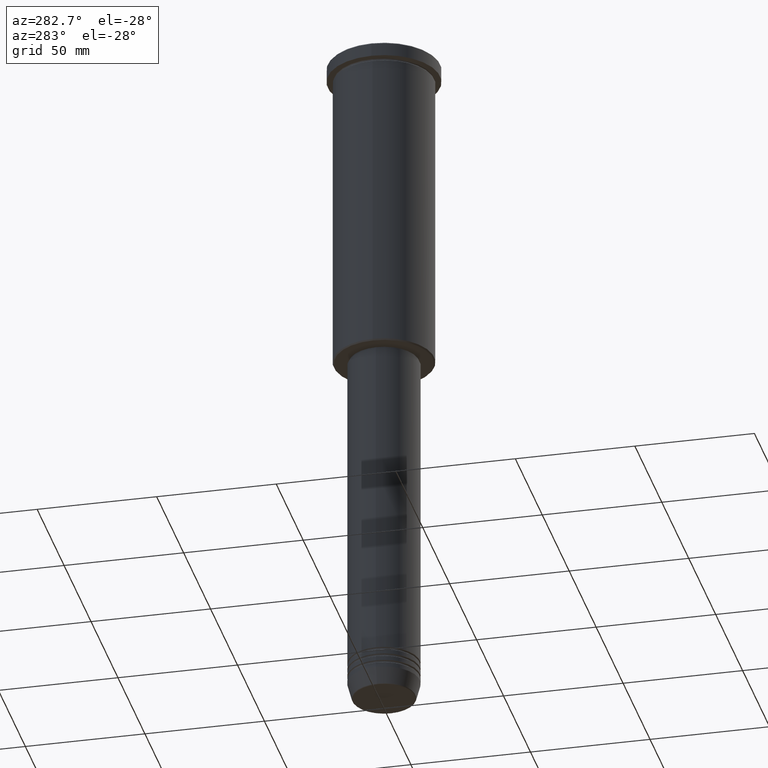
[diagram: clean part render]
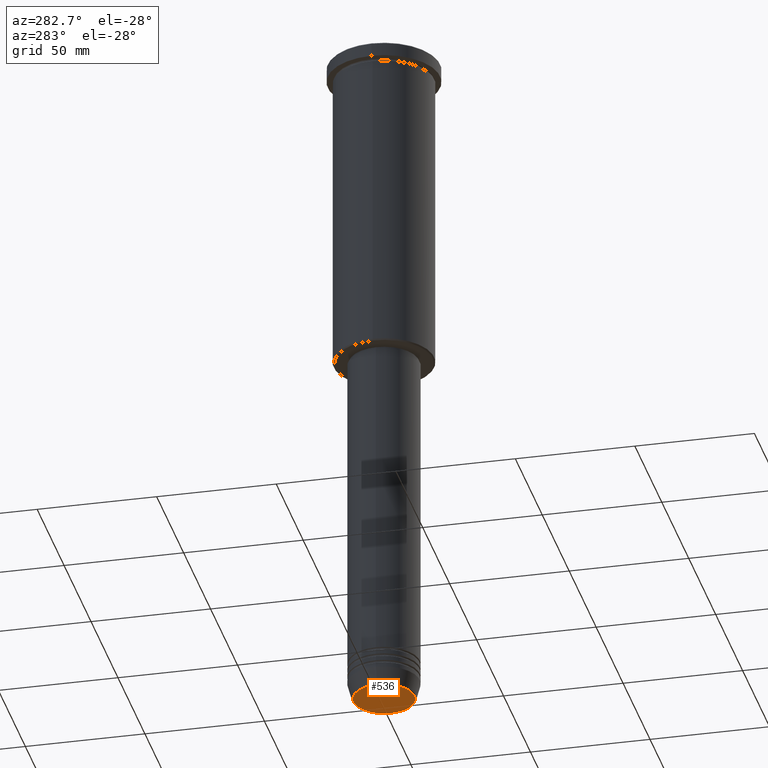
[diagram: same view with one face highlighted and labeled with its STEP entity id]
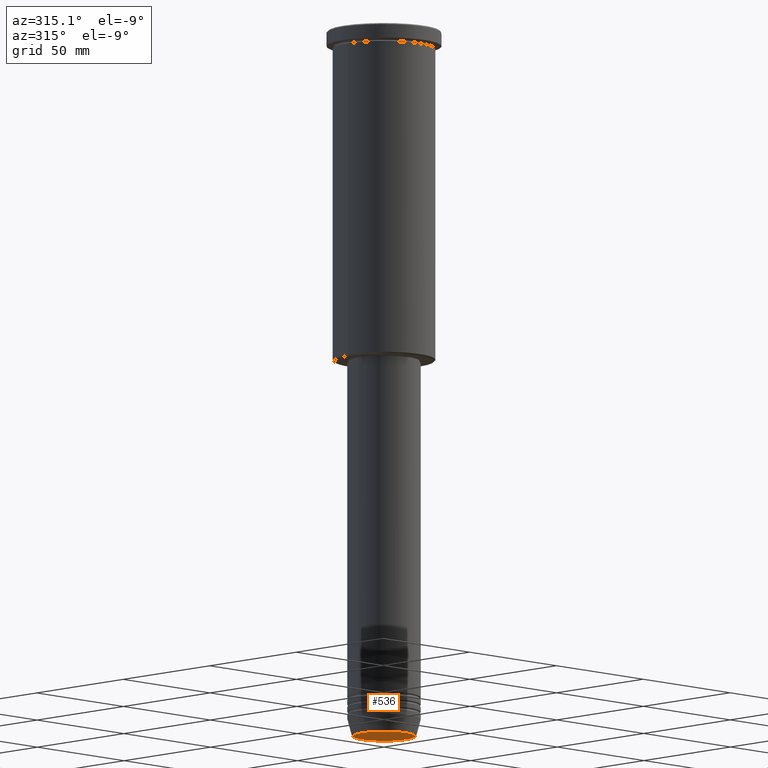
[diagram: same view with one face highlighted and labeled with its STEP entity id]
A machine part, auxiliary view. The second image highlights one B-rep face of the part: STEP entity #536.
A second angle (auxiliary view) of the same face is appended — the face is thin or edge-on in the first view.
In plain terms, the highlighted planar face has unit normal (0, -0, 1).
Its self-contained STEP definition (entity closure, byte-faithful):
#51 = ORIENTED_EDGE ( 'NONE', *, *, #284, .T. ) ;
#71 = PLANE ( 'NONE',  #1122 ) ;
#168 = VERTEX_POINT ( 'NONE', #418 ) ;
#204 = CARTESIAN_POINT ( 'NONE',  ( 0.000000000000000000, 0.000000000000000000, -291.0000000000000568 ) ) ;
#278 = DIRECTION ( 'NONE',  ( 0.000000000000000000, 0.000000000000000000, -1.000000000000000000 ) ) ;
#284 = EDGE_CURVE ( 'NONE', #168, #311, #578, .T. ) ;
#311 = VERTEX_POINT ( 'NONE', #995 ) ;
#376 = DIRECTION ( 'NONE',  ( 1.000000000000000000, 0.000000000000000000, 0.000000000000000000 ) ) ;
#418 = CARTESIAN_POINT ( 'NONE',  ( 12.74069215899265828, 0.000000000000000000, -291.0000000000000568 ) ) ;
#461 = CARTESIAN_POINT ( 'NONE',  ( 0.000000000000000000, 0.000000000000000000, -291.0000000000000568 ) ) ;
#487 = AXIS2_PLACEMENT_3D ( 'NONE', #461, #278, #1107 ) ;
#503 = FACE_OUTER_BOUND ( 'NONE', #786, .T. ) ;
#536 = ADVANCED_FACE ( 'NONE', ( #503 ), #71, .F. ) ;
#572 = DIRECTION ( 'NONE',  ( 0.000000000000000000, 0.000000000000000000, -1.000000000000000000 ) ) ;
#578 = CIRCLE ( 'NONE', #487, 12.74069215899265828 ) ;
#610 = CARTESIAN_POINT ( 'NONE',  ( 0.000000000000000000, 0.000000000000000000, -291.0000000000000568 ) ) ;
#698 = ORIENTED_EDGE ( 'NONE', *, *, #1150, .T. ) ;
#786 = EDGE_LOOP ( 'NONE', ( #51, #698 ) ) ;
#790 = AXIS2_PLACEMENT_3D ( 'NONE', #204, #572, #376 ) ;
#803 = DIRECTION ( 'NONE',  ( 0.000000000000000000, -0.000000000000000000, 1.000000000000000000 ) ) ;
#995 = CARTESIAN_POINT ( 'NONE',  ( -12.74069215899265828, 1.589857736427680246E-15, -291.0000000000000568 ) ) ;
#1095 = CIRCLE ( 'NONE', #790, 12.74069215899265828 ) ;
#1107 = DIRECTION ( 'NONE',  ( 1.000000000000000000, 0.000000000000000000, 0.000000000000000000 ) ) ;
#1122 = AXIS2_PLACEMENT_3D ( 'NONE', #610, #803, #1170 ) ;
#1150 = EDGE_CURVE ( 'NONE', #311, #168, #1095, .T. ) ;
#1170 = DIRECTION ( 'NONE',  ( 1.000000000000000000, 0.000000000000000000, 0.000000000000000000 ) ) ;